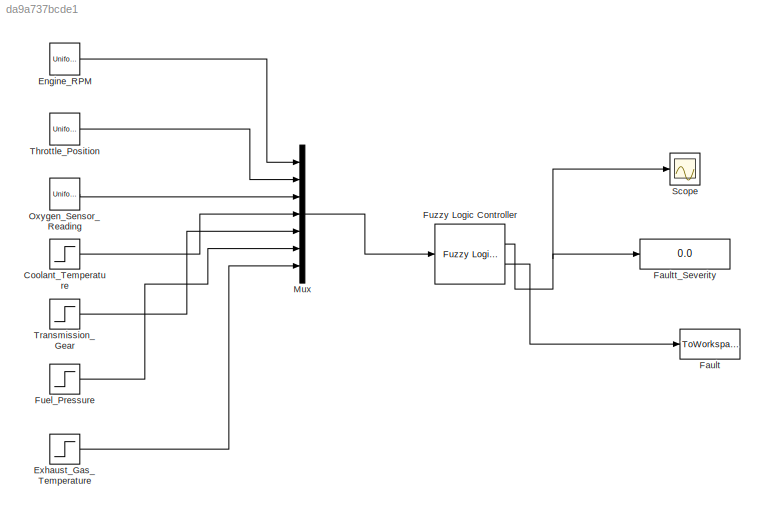
MODEL slx_da9a737bcde1
KIND model
CONFIG AbsTol = auto
CONFIG EnableMultiTasking = off
CONFIG FixedStep = auto
CONFIG MaxStep = auto
CONFIG MinStep = auto
CONFIG RelTol = 1e-3
CONFIG SampleTimeConstraint = Unconstrained
CONFIG Solver = VariableStepAuto
CONFIG SolverName = VariableStepAuto
CONFIG StartTime = 0.0
CONFIG StopTime = 10.0
BLOCK [UniformRandomNumber]  Engine_RPM 
  Maximum = 7000
  Minimum = 1000
  SampleTime = 0.1
BLOCK [Step]  Fuel_Pressure
  After = 75
  Before = 15
  SampleTime = 0.10
  Time = 3
  VectorParams1D = off
BLOCK [UniformRandomNumber]  Oxygen_Sensor_Reading 
  Maximum = 0.9
  Minimum = 0.4
  SampleTime = 0.1
BLOCK [Step]  Transmission_Gear
  After = 4
  Before = 1
  SampleTime = 0.10
  Time = 1.5
BLOCK [Step] Coolant_Temperature
  After = 70
  Before = 10
  SampleTime = 0.9
  Time = 4
BLOCK [Step] Exhaust_Gas_Temperature
  After = 880
  Before = 290
  SampleTime = 0.10
  Time = 3
BLOCK [ToWorkspace] Fault 
  FixptAsFi = on
  MaxDataPoints = inf
  Ports = [1]
  SampleTime = -1
  Save2DSignal = 3-D array (concatenate along third dimension)
  SaveFormat = Timeseries
  VariableName = fault
BLOCK [Display] Faultt_Severity 
  Decimation = 1
  Ports = [1]
BLOCK [Reference] Fuzzy Logic Controller  REF=fuzblock/Fuzzy Logic   (lib defined in mdl_858b3b3e7478)
Controller
  Ports = [1, 2]
  SourceBlock = fuzblock/Fuzzy Logic \nController
  SourceProductBaseCode = FL
  SourceProductName = Fuzzy Logic Toolbox
  SourceType = Fuzzy Inference System
BLOCK [Mux] Mux
  DisplayOption = bar
  Inputs = 7
  Ports = [7, 1]
BLOCK [Scope] Scope
  Floating = off
  NumInputPorts = 1
  Ports = [1]
  ScopeSpecificationString = Simulink.scopes.TimeScopeBlockCfg('CurrentConfiguration', extmgr.ConfigurationSet(extmgr.Configuration('Core','General UI',true),extmgr.Configuration('Core','Source UI',true),extmgr.Configuration('Sources','WiredSimulink',true),extmgr.Configuration('Visuals','Time Domain',true,'SerializedDisplays',{struct('MinYLimReal','0.30163','MaxYLimReal','0.67819','YLabelReal','','MinYLimMag','0.30163','MaxYL...<+2091ch>
BLOCK [UniformRandomNumber] Throttle_Position
  Maximum = 59
  Minimum = 10
  SampleTime = 0.1
LINE  Engine_RPM :1 -> Mux:1
LINE  Fuel_Pressure:1 -> Mux:6
LINE  Oxygen_Sensor_Reading :1 -> Mux:3
LINE  Transmission_Gear:1 -> Mux:5
LINE Coolant_Temperature:1 -> Mux:4
LINE Exhaust_Gas_Temperature:1 -> Mux:7
NET Fuzzy Logic Controller:1 -> Faultt_Severity :1, Scope:1
LINE Fuzzy Logic Controller:2 -> Fault :1
LINE Mux:1 -> Fuzzy Logic Controller:1
LINE Throttle_Position:1 -> Mux:2
note: NET lines group one-source signal fan-out (src -> all destinations, sorted); 1:1 wires keep LINE
